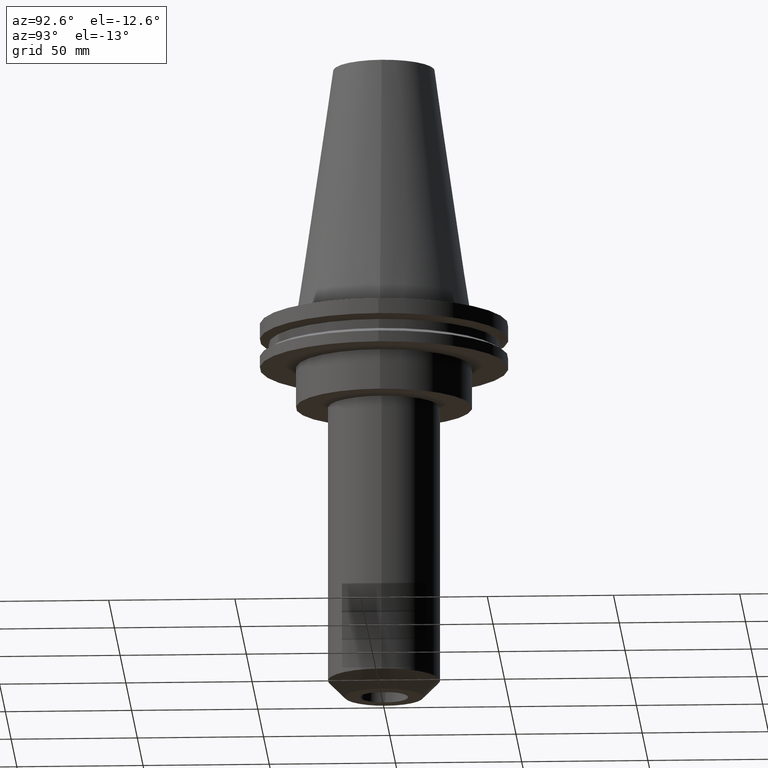
[diagram: clean part render]
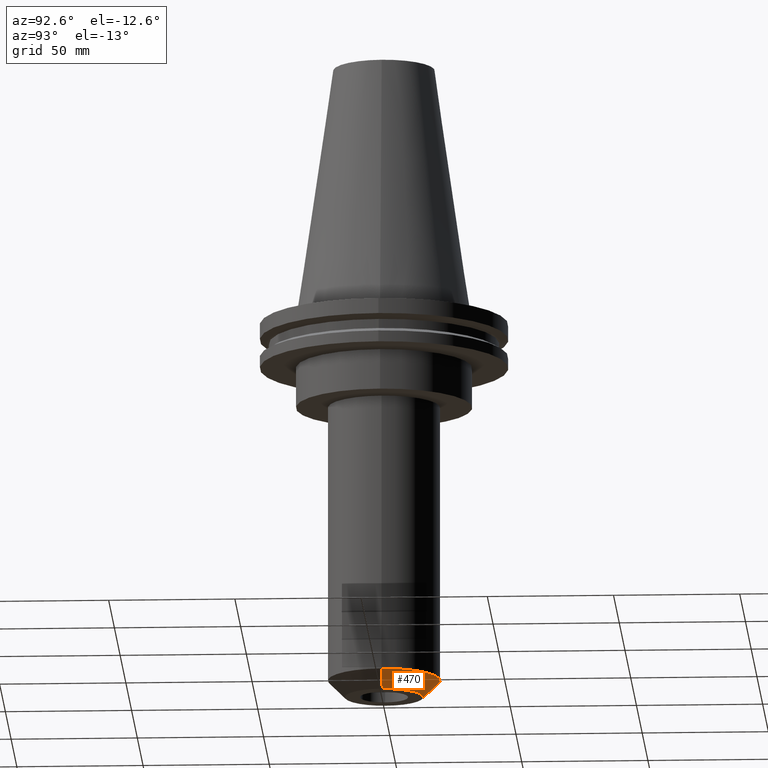
[diagram: same view with one face highlighted and labeled with its STEP entity id]
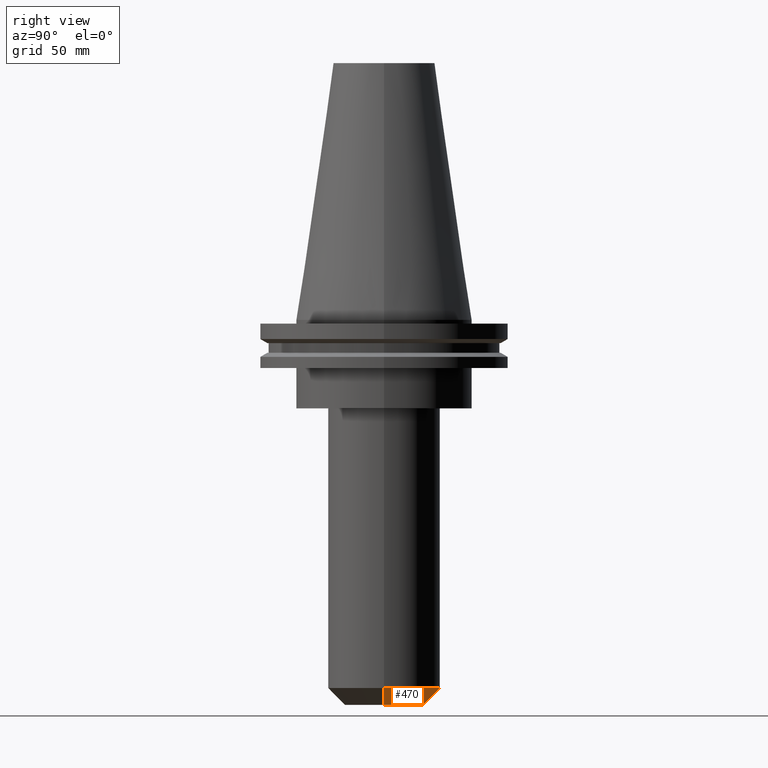
[diagram: same view with one face highlighted and labeled with its STEP entity id]
A machine part, auxiliary view. The second image highlights one B-rep face of the part: STEP entity #470.
A second angle (right view) of the same face is appended — the face is thin or edge-on in the first view.
In plain terms, the highlighted conical surface has half-angle 45 deg.
Its self-contained STEP definition (entity closure, byte-faithful):
#11 = CARTESIAN_POINT ( 'NONE',  ( 22.22500000000000497, 0.000000000000000000, -145.6999999999999318 ) ) ;
#84 = DIRECTION ( 'NONE',  ( 1.000000000000000000, 0.000000000000000000, 0.000000000000000000 ) ) ;
#106 = ORIENTED_EDGE ( 'NONE', *, *, #445, .T. ) ;
#116 = CARTESIAN_POINT ( 'NONE',  ( -15.52499999999991154, 2.311520833390623949E-15, -152.4000000000000057 ) ) ;
#118 = DIRECTION ( 'NONE',  ( -0.000000000000000000, -0.000000000000000000, 1.000000000000000000 ) ) ;
#134 = ORIENTED_EDGE ( 'NONE', *, *, #818, .F. ) ;
#205 = DIRECTION ( 'NONE',  ( 0.7071067811865489050, 0.000000000000000000, 0.7071067811865462405 ) ) ;
#283 = CARTESIAN_POINT ( 'NONE',  ( 15.52499999999991154, 0.000000000000000000, -152.4000000000000057 ) ) ;
#313 = FACE_OUTER_BOUND ( 'NONE', #708, .T. ) ;
#317 = DIRECTION ( 'NONE',  ( 1.000000000000000000, 0.000000000000000000, 0.000000000000000000 ) ) ;
#326 = VERTEX_POINT ( 'NONE', #828 ) ;
#332 = AXIS2_PLACEMENT_3D ( 'NONE', #791, #118, #317 ) ;
#391 = DIRECTION ( 'NONE',  ( 1.000000000000000000, 0.000000000000000000, 0.000000000000000000 ) ) ;
#428 = CIRCLE ( 'NONE', #660, 15.52499999999991154 ) ;
#440 = CARTESIAN_POINT ( 'NONE',  ( -15.52499999999991154, 1.901264155676255050E-15, -152.4000000000000057 ) ) ;
#445 = EDGE_CURVE ( 'NONE', #468, #796, #777, .T. ) ;
#468 = VERTEX_POINT ( 'NONE', #116 ) ;
#470 = ADVANCED_FACE ( 'NONE', ( #313 ), #553, .T. ) ;
#471 = CARTESIAN_POINT ( 'NONE',  ( 0.000000000000000000, 0.000000000000000000, -152.4000000000000057 ) ) ;
#515 = DIRECTION ( 'NONE',  ( -0.000000000000000000, -0.000000000000000000, 1.000000000000000000 ) ) ;
#553 = CONICAL_SURFACE ( 'NONE', #634, 15.52499999999991154, 0.7853981633974502774 ) ;
#561 = DIRECTION ( 'NONE',  ( -0.000000000000000000, -0.000000000000000000, 1.000000000000000000 ) ) ;
#565 = ORIENTED_EDGE ( 'NONE', *, *, #680, .T. ) ;
#588 = CARTESIAN_POINT ( 'NONE',  ( -22.22500000000000497, 2.721777511104993243E-15, -145.6999999999999318 ) ) ;
#600 = ORIENTED_EDGE ( 'NONE', *, *, #705, .F. ) ;
#634 = AXIS2_PLACEMENT_3D ( 'NONE', #471, #515, #391 ) ;
#660 = AXIS2_PLACEMENT_3D ( 'NONE', #816, #561, #84 ) ;
#680 = EDGE_CURVE ( 'NONE', #326, #468, #428, .T. ) ;
#696 = VERTEX_POINT ( 'NONE', #11 ) ;
#705 = EDGE_CURVE ( 'NONE', #326, #696, #745, .T. ) ;
#707 = DIRECTION ( 'NONE',  ( -0.7071067811865489050, 8.659560562354950115E-17, 0.7071067811865462405 ) ) ;
#708 = EDGE_LOOP ( 'NONE', ( #565, #106, #134, #600 ) ) ;
#745 = LINE ( 'NONE', #283, #797 ) ;
#773 = CIRCLE ( 'NONE', #332, 22.22500000000000497 ) ;
#777 = LINE ( 'NONE', #440, #851 ) ;
#791 = CARTESIAN_POINT ( 'NONE',  ( 0.000000000000000000, 0.000000000000000000, -145.6999999999999318 ) ) ;
#796 = VERTEX_POINT ( 'NONE', #588 ) ;
#797 = VECTOR ( 'NONE', #205, 1000.000000000000000 ) ;
#816 = CARTESIAN_POINT ( 'NONE',  ( 0.000000000000000000, 0.000000000000000000, -152.4000000000000057 ) ) ;
#818 = EDGE_CURVE ( 'NONE', #696, #796, #773, .T. ) ;
#828 = CARTESIAN_POINT ( 'NONE',  ( 15.52499999999991154, 0.000000000000000000, -152.4000000000000057 ) ) ;
#851 = VECTOR ( 'NONE', #707, 1000.000000000000000 ) ;